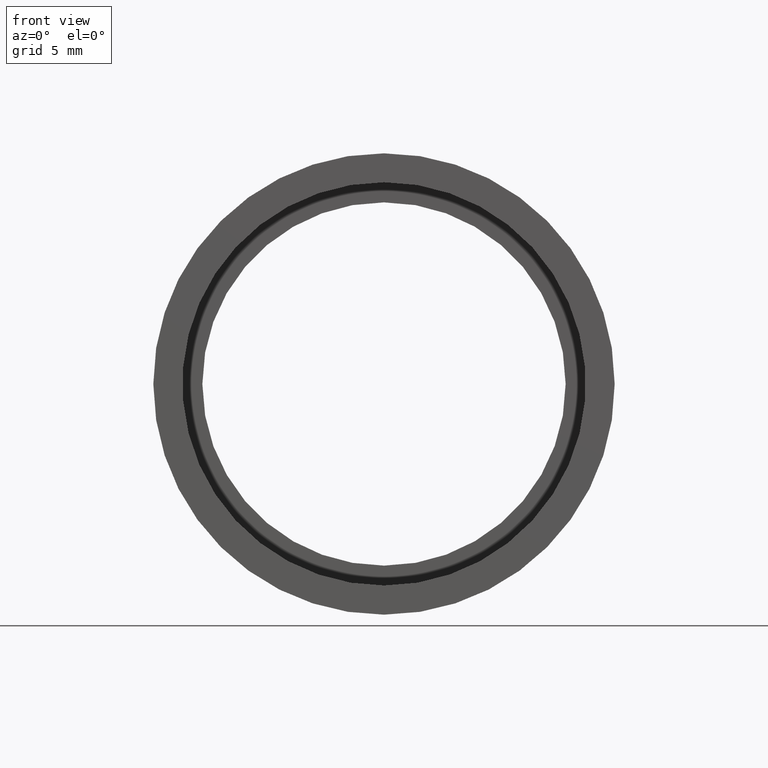
[diagram: clean part render]
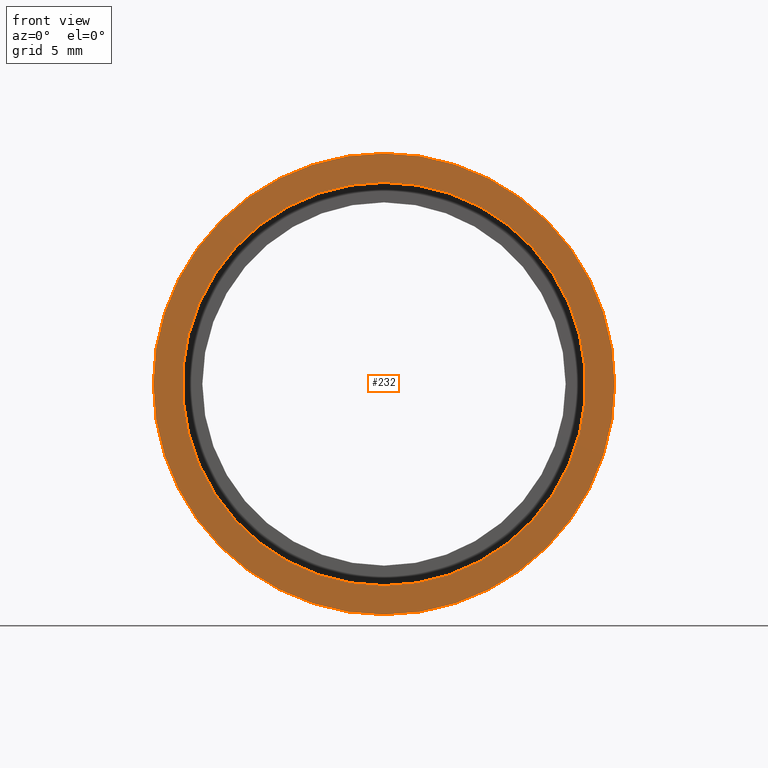
[diagram: same view with one face highlighted and labeled with its STEP entity id]
A machine part, front view. The second image highlights one B-rep face of the part: STEP entity #232.
In plain terms, the highlighted planar face has unit normal (-0, 1, 0).
Its self-contained STEP definition (entity closure, byte-faithful):
#3 = VERTEX_POINT ( 'NONE', #596 ) ;
#5 = DIRECTION ( 'NONE',  ( 0.0000000000000000000, 0.0000000000000000000, 1.000000000000000000 ) ) ;
#6 = AXIS2_PLACEMENT_3D ( 'NONE', #29, #513, #231 ) ;
#14 = CIRCLE ( 'NONE', #406, 12.70000000000001900 ) ;
#19 = VERTEX_POINT ( 'NONE', #315 ) ;
#26 = DIRECTION ( 'NONE',  ( -0.0000000000000000000, 1.000000000000000000, -0.0000000000000000000 ) ) ;
#29 = CARTESIAN_POINT ( 'NONE',  ( 0.0000000000000000000, -2.775557561562891400E-014, 0.0000000000000000000 ) ) ;
#36 = EDGE_CURVE ( 'NONE', #210, #19, #448, .T. ) ;
#57 = EDGE_CURVE ( 'NONE', #486, #3, #434, .T. ) ;
#89 = CARTESIAN_POINT ( 'NONE',  ( 11.10000000000002300, -1.590039098016662300E-014, 0.0000000000000000000 ) ) ;
#102 = CARTESIAN_POINT ( 'NONE',  ( 0.0000000000000000000, -2.775557561562891400E-014, 0.0000000000000000000 ) ) ;
#195 = FACE_OUTER_BOUND ( 'NONE', #390, .T. ) ;
#210 = VERTEX_POINT ( 'NONE', #383 ) ;
#219 = ORIENTED_EDGE ( 'NONE', *, *, #363, .F. ) ;
#231 = DIRECTION ( 'NONE',  ( 0.0000000000000000000, 0.0000000000000000000, 1.000000000000000000 ) ) ;
#232 = ADVANCED_FACE ( 'NONE', ( #195, #431 ), #385, .F. ) ;
#241 = AXIS2_PLACEMENT_3D ( 'NONE', #599, #26, #405 ) ;
#245 = DIRECTION ( 'NONE',  ( -0.0000000000000000000, 1.000000000000000000, 0.0000000000000000000 ) ) ;
#252 = DIRECTION ( 'NONE',  ( -0.0000000000000000000, 1.000000000000000000, -0.0000000000000000000 ) ) ;
#289 = ORIENTED_EDGE ( 'NONE', *, *, #36, .T. ) ;
#295 = DIRECTION ( 'NONE',  ( -0.0000000000000000000, 1.000000000000000000, -0.0000000000000000000 ) ) ;
#314 = ORIENTED_EDGE ( 'NONE', *, *, #57, .F. ) ;
#315 = CARTESIAN_POINT ( 'NONE',  ( 0.0000000000000000000, -2.775557561562891400E-014, 11.10000000000002300 ) ) ;
#338 = AXIS2_PLACEMENT_3D ( 'NONE', #588, #252, #586 ) ;
#341 = EDGE_CURVE ( 'NONE', #19, #210, #368, .T. ) ;
#363 = EDGE_CURVE ( 'NONE', #3, #486, #14, .T. ) ;
#368 = CIRCLE ( 'NONE', #338, 11.10000000000002300 ) ;
#383 = CARTESIAN_POINT ( 'NONE',  ( 1.359357947053564900E-015, -2.775557561562891400E-014, -11.10000000000002300 ) ) ;
#385 = PLANE ( 'NONE',  #554 ) ;
#390 = EDGE_LOOP ( 'NONE', ( #314, #219 ) ) ;
#405 = DIRECTION ( 'NONE',  ( 0.0000000000000000000, 0.0000000000000000000, 1.000000000000000000 ) ) ;
#406 = AXIS2_PLACEMENT_3D ( 'NONE', #102, #295, #5 ) ;
#431 = FACE_BOUND ( 'NONE', #536, .T. ) ;
#434 = CIRCLE ( 'NONE', #6, 12.70000000000001900 ) ;
#448 = CIRCLE ( 'NONE', #241, 11.10000000000002300 ) ;
#479 = ORIENTED_EDGE ( 'NONE', *, *, #341, .T. ) ;
#486 = VERTEX_POINT ( 'NONE', #590 ) ;
#513 = DIRECTION ( 'NONE',  ( -0.0000000000000000000, 1.000000000000000000, -0.0000000000000000000 ) ) ;
#536 = EDGE_LOOP ( 'NONE', ( #479, #289 ) ) ;
#554 = AXIS2_PLACEMENT_3D ( 'NONE', #89, #245, #622 ) ;
#586 = DIRECTION ( 'NONE',  ( 0.0000000000000000000, 0.0000000000000000000, 1.000000000000000000 ) ) ;
#588 = CARTESIAN_POINT ( 'NONE',  ( 0.0000000000000000000, -2.775557561562891400E-014, 0.0000000000000000000 ) ) ;
#590 = CARTESIAN_POINT ( 'NONE',  ( 0.0000000000000000000, -2.775557561562891400E-014, 12.70000000000001900 ) ) ;
#596 = CARTESIAN_POINT ( 'NONE',  ( 1.555301434917140800E-015, -2.775557561562891400E-014, -12.70000000000001900 ) ) ;
#599 = CARTESIAN_POINT ( 'NONE',  ( 0.0000000000000000000, -2.775557561562891400E-014, 0.0000000000000000000 ) ) ;
#622 = DIRECTION ( 'NONE',  ( 0.0000000000000000000, 0.0000000000000000000, 1.000000000000000000 ) ) ;